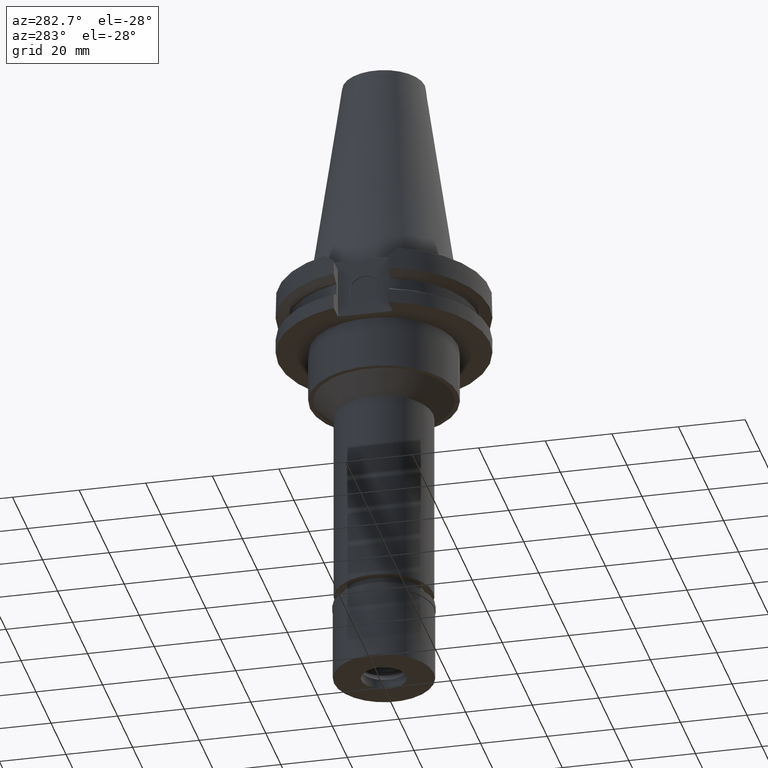
[diagram: clean part render]
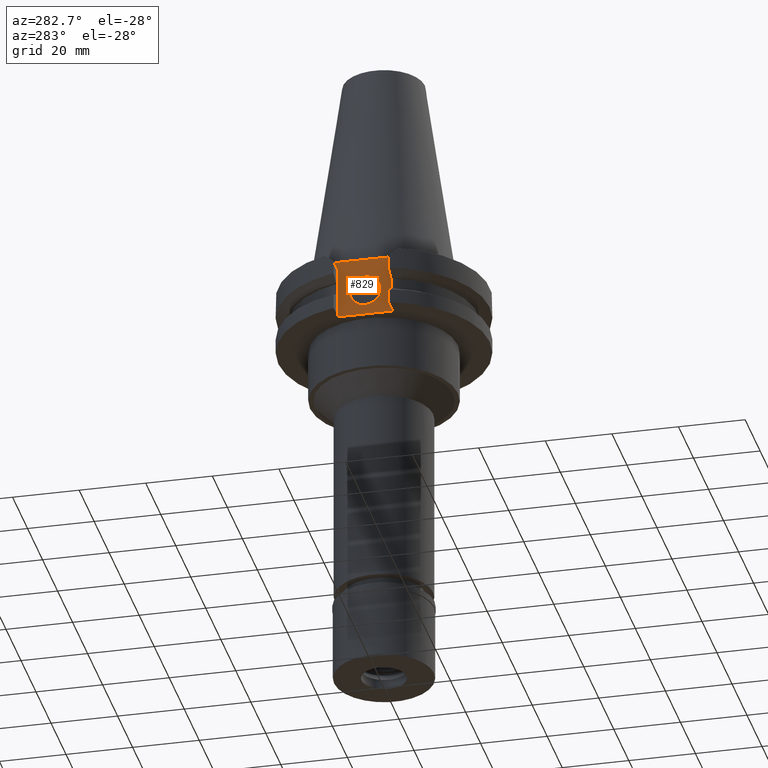
[diagram: same view with one face highlighted and labeled with its STEP entity id]
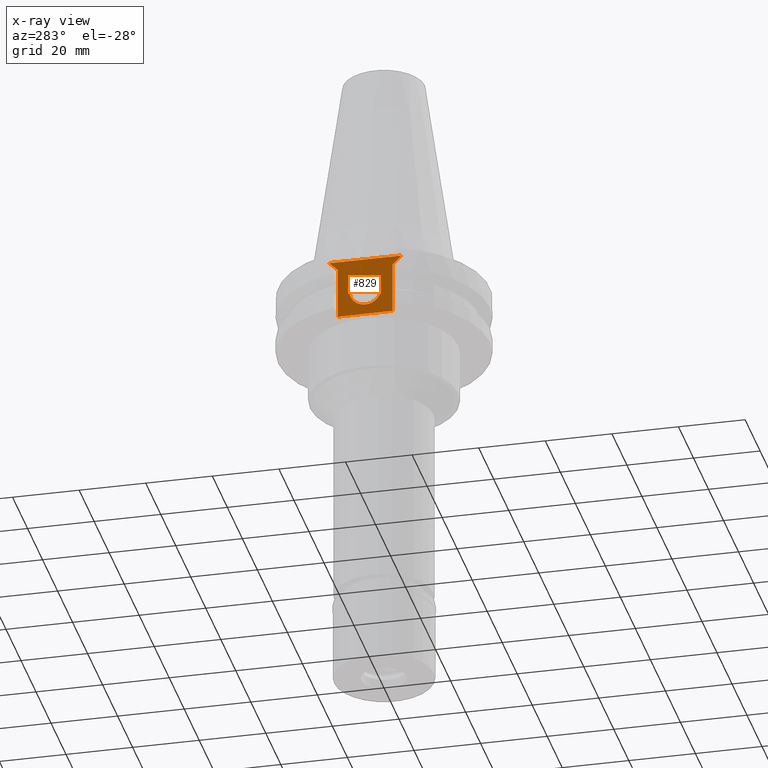
[diagram: x-ray of the same camera — body ghosted, the highlighted face saturated]
A machine part, auxiliary view. The second image highlights one B-rep face of the part: STEP entity #829.
The next image is the same camera in x-ray: the body ghosted, the highlighted face saturated — about 0% of this face is hidden behind the body in this view.
In plain terms, the highlighted planar face has unit normal (1, 0, 0).
Its self-contained STEP definition (entity closure, byte-faithful):
#63 = CARTESIAN_POINT ( 'NONE',  ( -24.98000000000000043, -10.89000000000000057, -1.000000000000000000 ) ) ;
#191 = VERTEX_POINT ( 'NONE', #1333 ) ;
#246 = ORIENTED_EDGE ( 'NONE', *, *, #2196, .F. ) ;
#285 = EDGE_CURVE ( 'NONE', #510, #860, #2146, .T. ) ;
#330 = EDGE_CURVE ( 'NONE', #2785, #1294, #1453, .T. ) ;
#358 = DIRECTION ( 'NONE',  ( 0.0000000000000000000, 0.7071067811865474617, 0.7071067811865474617 ) ) ;
#381 = DIRECTION ( 'NONE',  ( -1.000000000000000000, 0.0000000000000000000, 0.0000000000000000000 ) ) ;
#428 = DIRECTION ( 'NONE',  ( 1.000000000000000000, 0.0000000000000000000, 0.0000000000000000000 ) ) ;
#479 = CARTESIAN_POINT ( 'NONE',  ( -24.98000000000000043, 4.762500000000000178, -11.18000000000000149 ) ) ;
#510 = VERTEX_POINT ( 'NONE', #1211 ) ;
#589 = CARTESIAN_POINT ( 'NONE',  ( -24.98000000000000043, 8.189999999999999503, -3.700000000000000178 ) ) ;
#613 = EDGE_LOOP ( 'NONE', ( #2193, #904, #1991, #2126, #2436, #1269 ) ) ;
#706 = AXIS2_PLACEMENT_3D ( 'NONE', #2916, #381, #2421 ) ;
#727 = CARTESIAN_POINT ( 'NONE',  ( -24.98000000000000043, 8.189999999999999503, -19.05000000000000071 ) ) ;
#798 = ORIENTED_EDGE ( 'NONE', *, *, #330, .F. ) ;
#829 = ADVANCED_FACE ( 'NONE', ( #3309, #2728 ), #1509, .F. ) ;
#851 = EDGE_CURVE ( 'NONE', #860, #1506, #3258, .T. ) ;
#855 = DIRECTION ( 'NONE',  ( 0.0000000000000000000, 0.0000000000000000000, 1.000000000000000000 ) ) ;
#860 = VERTEX_POINT ( 'NONE', #1750 ) ;
#883 = LINE ( 'NONE', #3217, #2173 ) ;
#904 = ORIENTED_EDGE ( 'NONE', *, *, #2890, .F. ) ;
#1100 = EDGE_CURVE ( 'NONE', #510, #2812, #2687, .T. ) ;
#1211 = CARTESIAN_POINT ( 'NONE',  ( -24.98000000000000043, 8.189999999999999503, -3.700000000000000178 ) ) ;
#1215 = DIRECTION ( 'NONE',  ( 0.0000000000000000000, -1.000000000000000000, 0.0000000000000000000 ) ) ;
#1235 = CARTESIAN_POINT ( 'NONE',  ( -24.98000000000000043, 10.89000000000000057, -1.000000000000000000 ) ) ;
#1253 = CARTESIAN_POINT ( 'NONE',  ( -24.98000000000000043, 0.0000000000000000000, -11.18000000000000149 ) ) ;
#1269 = ORIENTED_EDGE ( 'NONE', *, *, #851, .T. ) ;
#1294 = VERTEX_POINT ( 'NONE', #3035 ) ;
#1299 = DIRECTION ( 'NONE',  ( 0.0000000000000000000, 0.7071067811865474617, -0.7071067811865474617 ) ) ;
#1333 = CARTESIAN_POINT ( 'NONE',  ( -24.98000000000000043, -8.189999999999999503, -3.700000000000000178 ) ) ;
#1375 = DIRECTION ( 'NONE',  ( 0.0000000000000000000, -1.000000000000000000, 0.0000000000000000000 ) ) ;
#1453 = CIRCLE ( 'NONE', #706, 4.762500000000000178 ) ;
#1506 = VERTEX_POINT ( 'NONE', #2389 ) ;
#1507 = AXIS2_PLACEMENT_3D ( 'NONE', #2743, #428, #2773 ) ;
#1509 = PLANE ( 'NONE',  #1507 ) ;
#1636 = VECTOR ( 'NONE', #1299, 1000.000000000000114 ) ;
#1681 = DIRECTION ( 'NONE',  ( -1.000000000000000000, 0.0000000000000000000, 0.0000000000000000000 ) ) ;
#1712 = VECTOR ( 'NONE', #2164, 1000.000000000000000 ) ;
#1750 = CARTESIAN_POINT ( 'NONE',  ( -24.98000000000000043, 8.189999999999999503, -19.05000000000000071 ) ) ;
#1958 = CIRCLE ( 'NONE', #3270, 4.762500000000000178 ) ;
#1991 = ORIENTED_EDGE ( 'NONE', *, *, #2642, .F. ) ;
#2126 = ORIENTED_EDGE ( 'NONE', *, *, #1100, .F. ) ;
#2138 = LINE ( 'NONE', #2700, #2885 ) ;
#2146 = LINE ( 'NONE', #2982, #1712 ) ;
#2164 = DIRECTION ( 'NONE',  ( 0.0000000000000000000, 0.0000000000000000000, -1.000000000000000000 ) ) ;
#2173 = VECTOR ( 'NONE', #855, 1000.000000000000000 ) ;
#2193 = ORIENTED_EDGE ( 'NONE', *, *, #2555, .T. ) ;
#2196 = EDGE_CURVE ( 'NONE', #1294, #2785, #1958, .T. ) ;
#2255 = DIRECTION ( 'NONE',  ( 0.0000000000000000000, -1.000000000000000000, 0.0000000000000000000 ) ) ;
#2256 = VECTOR ( 'NONE', #1215, 1000.000000000000000 ) ;
#2268 = CARTESIAN_POINT ( 'NONE',  ( -24.98000000000000043, -10.89000000000000057, -1.000000000000000000 ) ) ;
#2389 = CARTESIAN_POINT ( 'NONE',  ( -24.98000000000000043, -8.189999999999999503, -19.05000000000000071 ) ) ;
#2421 = DIRECTION ( 'NONE',  ( 0.0000000000000000000, 1.000000000000000000, 0.0000000000000000000 ) ) ;
#2436 = ORIENTED_EDGE ( 'NONE', *, *, #285, .T. ) ;
#2540 = LINE ( 'NONE', #2268, #1636 ) ;
#2555 = EDGE_CURVE ( 'NONE', #1506, #191, #883, .T. ) ;
#2642 = EDGE_CURVE ( 'NONE', #2812, #2692, #2138, .T. ) ;
#2687 = LINE ( 'NONE', #589, #3073 ) ;
#2692 = VERTEX_POINT ( 'NONE', #63 ) ;
#2700 = CARTESIAN_POINT ( 'NONE',  ( -24.98000000000000043, 10.89000000000000057, -1.000000000000000000 ) ) ;
#2725 = EDGE_LOOP ( 'NONE', ( #246, #798 ) ) ;
#2728 = FACE_BOUND ( 'NONE', #2725, .T. ) ;
#2743 = CARTESIAN_POINT ( 'NONE',  ( -24.98000000000000043, 0.0000000000000000000, 0.0000000000000000000 ) ) ;
#2773 = DIRECTION ( 'NONE',  ( 0.0000000000000000000, 1.000000000000000000, 0.0000000000000000000 ) ) ;
#2785 = VERTEX_POINT ( 'NONE', #479 ) ;
#2812 = VERTEX_POINT ( 'NONE', #1235 ) ;
#2885 = VECTOR ( 'NONE', #1375, 1000.000000000000000 ) ;
#2890 = EDGE_CURVE ( 'NONE', #2692, #191, #2540, .T. ) ;
#2916 = CARTESIAN_POINT ( 'NONE',  ( -24.98000000000000043, 0.0000000000000000000, -11.18000000000000149 ) ) ;
#2982 = CARTESIAN_POINT ( 'NONE',  ( -24.98000000000000043, 8.189999999999999503, -3.700000000000000178 ) ) ;
#3035 = CARTESIAN_POINT ( 'NONE',  ( -24.98000000000000043, -4.762500000000000178, -11.18000000000000149 ) ) ;
#3073 = VECTOR ( 'NONE', #358, 1000.000000000000114 ) ;
#3217 = CARTESIAN_POINT ( 'NONE',  ( -24.98000000000000043, -8.189999999999999503, -19.05000000000000071 ) ) ;
#3258 = LINE ( 'NONE', #727, #2256 ) ;
#3270 = AXIS2_PLACEMENT_3D ( 'NONE', #1253, #1681, #2255 ) ;
#3309 = FACE_OUTER_BOUND ( 'NONE', #613, .T. ) ;